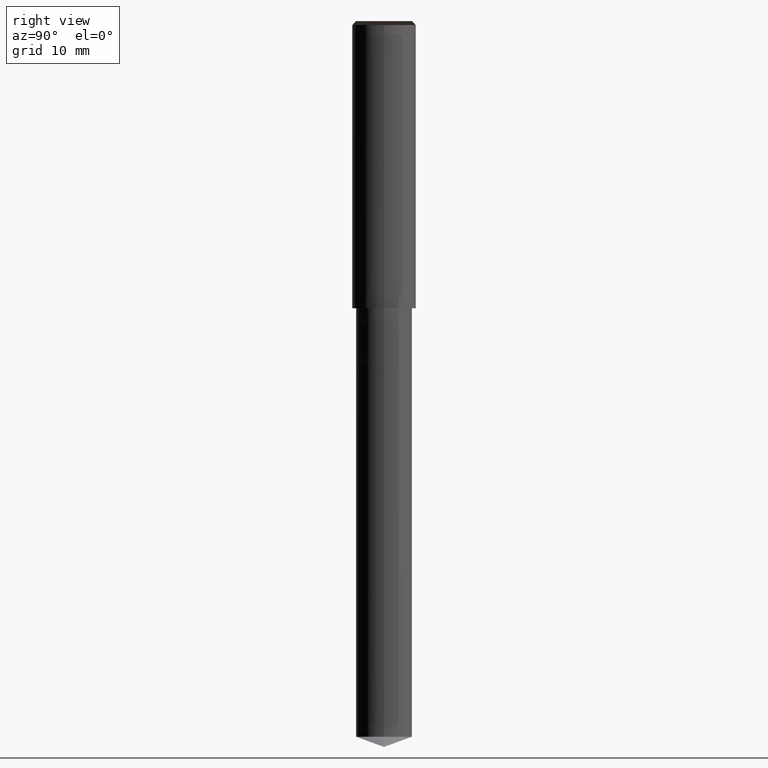
[diagram: clean part render]
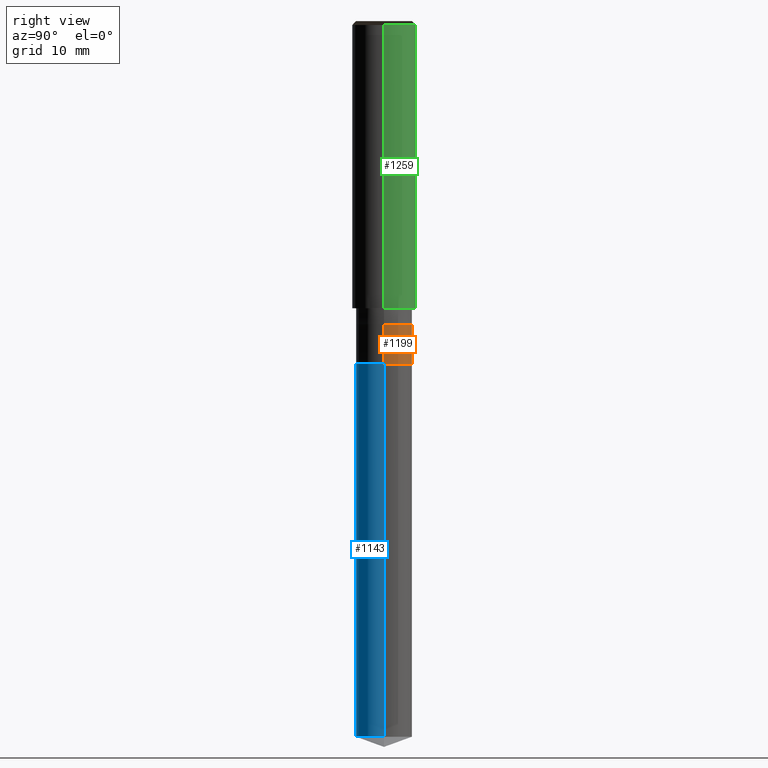
[diagram: same view with three faces highlighted in distinct colors, each labeled with its STEP entity id]
A machine part, right view with three faces highlighted in distinct colors.
Their STEP definitions:

[orange] entity #1199 — the highlighted face is a freeform B-spline surface patch.
#998=CARTESIAN_POINT('',(3.5,0.0,-7.0));
#999=CARTESIAN_POINT('',(3.5,3.5,-7.0));
#1000=CARTESIAN_POINT('',(0.0,3.5,-7.0));
#1001=CARTESIAN_POINT('',(-3.5,3.5,-7.0));
#1002=CARTESIAN_POINT('',(-3.5,0.0,-7.0));
#1010=CARTESIAN_POINT('',(3.5,0.0,-2.0));
#1011=CARTESIAN_POINT('',(3.5,3.5,-2.0));
#1012=CARTESIAN_POINT('',(0.0,3.5,-2.0));
#1013=CARTESIAN_POINT('',(-3.5,3.5,-2.0));
#1014=CARTESIAN_POINT('',(-3.5,0.0,-2.0));
#1180=(
BOUNDED_SURFACE()
B_SPLINE_SURFACE(1,2,(
(#998,#999,#1000,#1001,#1002),
(#1010,#1011,#1012,#1013,#1014)
), .UNSPECIFIED.,.F.,.F.,.F.)
B_SPLINE_SURFACE_WITH_KNOTS((2,2),(3,2,3),(
0.0,1.0),(
0.0,0.5,1.0), .UNSPECIFIED.)
GEOMETRIC_REPRESENTATION_ITEM()
RATIONAL_B_SPLINE_SURFACE(((1.0,0.707106781187,1.0,0.707106781187,1.0),
(1.0,0.707106781187,1.0,0.707106781187,1.0)
))
REPRESENTATION_ITEM('')
SURFACE()
);
#1181=(
BOUNDED_CURVE()
B_SPLINE_CURVE(2,(#1002,#1001,#1000,#999,#998),.UNSPECIFIED.,.F.,.F.)
B_SPLINE_CURVE_WITH_KNOTS((3,2,3),
(0.0,0.5,1.0),.UNSPECIFIED.)
CURVE()
GEOMETRIC_REPRESENTATION_ITEM()
RATIONAL_B_SPLINE_CURVE((1.0,0.707106781187,1.0,0.707106781187,1.0))
REPRESENTATION_ITEM('')
);
#1182=(
BOUNDED_CURVE()
B_SPLINE_CURVE(1,(#998,#1010),.UNSPECIFIED.,.F.,.F.)
B_SPLINE_CURVE_WITH_KNOTS((2,2),
(0.0,1.0),.UNSPECIFIED.)
CURVE()
GEOMETRIC_REPRESENTATION_ITEM()
RATIONAL_B_SPLINE_CURVE((1.0,1.0))
REPRESENTATION_ITEM('')
);
#1183=(
BOUNDED_CURVE()
B_SPLINE_CURVE(2,(#1010,#1011,#1012,#1013,#1014),.UNSPECIFIED.,.F.,.F.)
B_SPLINE_CURVE_WITH_KNOTS((3,2,3),
(0.0,0.5,1.0),.UNSPECIFIED.)
CURVE()
GEOMETRIC_REPRESENTATION_ITEM()
RATIONAL_B_SPLINE_CURVE((1.0,0.707106781187,1.0,0.707106781187,1.0))
REPRESENTATION_ITEM('')
);
#1184=(
BOUNDED_CURVE()
B_SPLINE_CURVE(1,(#1014,#1002),.UNSPECIFIED.,.F.,.F.)
B_SPLINE_CURVE_WITH_KNOTS((2,2),
(0.0,1.0),.UNSPECIFIED.)
CURVE()
GEOMETRIC_REPRESENTATION_ITEM()
RATIONAL_B_SPLINE_CURVE((1.0,1.0))
REPRESENTATION_ITEM('')
);
#1185=VERTEX_POINT('',#998);
#1186=VERTEX_POINT('',#1002);
#1187=VERTEX_POINT('',#1010);
#1188=VERTEX_POINT('',#1014);
#1189=EDGE_CURVE('',#1186,#1185,#1181,.T.);
#1190=EDGE_CURVE('',#1185,#1187,#1182,.T.);
#1191=EDGE_CURVE('',#1187,#1188,#1183,.T.);
#1192=EDGE_CURVE('',#1188,#1186,#1184,.T.);
#1193=ORIENTED_EDGE('',*,*,#1189,.T.);
#1194=ORIENTED_EDGE('',*,*,#1190,.T.);
#1195=ORIENTED_EDGE('',*,*,#1191,.T.);
#1196=ORIENTED_EDGE('',*,*,#1192,.T.);
#1197=EDGE_LOOP('',(#1193,#1194,#1195,#1196));
#1198=FACE_OUTER_BOUND('',#1197,.T.);
#1199=ADVANCED_FACE('',(#1198),#1180,.T.);

[blue] entity #1143 — the highlighted face is a freeform B-spline surface patch.
#993=CARTESIAN_POINT('',(3.5,0.0,-53.726104180068));
#997=CARTESIAN_POINT('',(-3.5,0.0,-53.726104180068));
#998=CARTESIAN_POINT('',(3.5,0.0,-7.0));
#1002=CARTESIAN_POINT('',(-3.5,0.0,-7.0));
#1004=CARTESIAN_POINT('',(-3.5,-3.5,-53.726104180068));
#1005=CARTESIAN_POINT('',(0.0,-3.5,-53.726104180068));
#1006=CARTESIAN_POINT('',(3.5,-3.5,-53.726104180068));
#1007=CARTESIAN_POINT('',(-3.5,-3.5,-7.0));
#1008=CARTESIAN_POINT('',(0.0,-3.5,-7.0));
#1009=CARTESIAN_POINT('',(3.5,-3.5,-7.0));
#1124=(
BOUNDED_SURFACE()
B_SPLINE_SURFACE(1,2,(
(#997,#1004,#1005,#1006,#993),
(#1002,#1007,#1008,#1009,#998)
), .UNSPECIFIED.,.F.,.F.,.F.)
B_SPLINE_SURFACE_WITH_KNOTS((2,2),(3,2,3),(
0.0,1.0),(
0.0,0.5,1.0), .UNSPECIFIED.)
GEOMETRIC_REPRESENTATION_ITEM()
RATIONAL_B_SPLINE_SURFACE(((1.0,0.707106781187,1.0,0.707106781187,1.0),
(1.0,0.707106781187,1.0,0.707106781187,1.0)
))
REPRESENTATION_ITEM('')
SURFACE()
);
#1125=(
BOUNDED_CURVE()
B_SPLINE_CURVE(2,(#993,#1006,#1005,#1004,#997),.UNSPECIFIED.,.F.,.F.)
B_SPLINE_CURVE_WITH_KNOTS((3,2,3),
(0.0,0.5,1.0),.UNSPECIFIED.)
CURVE()
GEOMETRIC_REPRESENTATION_ITEM()
RATIONAL_B_SPLINE_CURVE((1.0,0.707106781187,1.0,0.707106781187,1.0))
REPRESENTATION_ITEM('')
);
#1126=(
BOUNDED_CURVE()
B_SPLINE_CURVE(1,(#997,#1002),.UNSPECIFIED.,.F.,.F.)
B_SPLINE_CURVE_WITH_KNOTS((2,2),
(0.0,1.0),.UNSPECIFIED.)
CURVE()
GEOMETRIC_REPRESENTATION_ITEM()
RATIONAL_B_SPLINE_CURVE((1.0,1.0))
REPRESENTATION_ITEM('')
);
#1127=(
BOUNDED_CURVE()
B_SPLINE_CURVE(2,(#1002,#1007,#1008,#1009,#998),.UNSPECIFIED.,.F.,.F.)
B_SPLINE_CURVE_WITH_KNOTS((3,2,3),
(0.0,0.5,1.0),.UNSPECIFIED.)
CURVE()
GEOMETRIC_REPRESENTATION_ITEM()
RATIONAL_B_SPLINE_CURVE((1.0,0.707106781187,1.0,0.707106781187,1.0))
REPRESENTATION_ITEM('')
);
#1128=(
BOUNDED_CURVE()
B_SPLINE_CURVE(1,(#998,#993),.UNSPECIFIED.,.F.,.F.)
B_SPLINE_CURVE_WITH_KNOTS((2,2),
(0.0,1.0),.UNSPECIFIED.)
CURVE()
GEOMETRIC_REPRESENTATION_ITEM()
RATIONAL_B_SPLINE_CURVE((1.0,1.0))
REPRESENTATION_ITEM('')
);
#1129=VERTEX_POINT('',#993);
#1130=VERTEX_POINT('',#997);
#1131=VERTEX_POINT('',#998);
#1132=VERTEX_POINT('',#1002);
#1133=EDGE_CURVE('',#1129,#1130,#1125,.T.);
#1134=EDGE_CURVE('',#1130,#1132,#1126,.T.);
#1135=EDGE_CURVE('',#1132,#1131,#1127,.T.);
#1136=EDGE_CURVE('',#1131,#1129,#1128,.T.);
#1137=ORIENTED_EDGE('',*,*,#1133,.T.);
#1138=ORIENTED_EDGE('',*,*,#1134,.T.);
#1139=ORIENTED_EDGE('',*,*,#1135,.T.);
#1140=ORIENTED_EDGE('',*,*,#1136,.T.);
#1141=EDGE_LOOP('',(#1137,#1138,#1139,#1140));
#1142=FACE_OUTER_BOUND('',#1141,.T.);
#1143=ADVANCED_FACE('',(#1142),#1124,.T.);

[green] entity #1259 — the highlighted face is a freeform B-spline surface patch.
#1020=CARTESIAN_POINT('',(4.0,0.0,0.0));
#1021=CARTESIAN_POINT('',(4.0,4.0,0.0));
#1022=CARTESIAN_POINT('',(0.0,4.0,0.0));
#1023=CARTESIAN_POINT('',(-4.0,4.0,0.0));
#1024=CARTESIAN_POINT('',(-4.0,0.0,0.0));
#1025=CARTESIAN_POINT('',(4.0,0.0,35.5));
#1026=CARTESIAN_POINT('',(4.0,4.0,35.5));
#1027=CARTESIAN_POINT('',(0.0,4.0,35.5));
#1028=CARTESIAN_POINT('',(-4.0,4.0,35.5));
#1029=CARTESIAN_POINT('',(-4.0,0.0,35.5));
#1240=(
BOUNDED_SURFACE()
B_SPLINE_SURFACE(1,2,(
(#1020,#1021,#1022,#1023,#1024),
(#1025,#1026,#1027,#1028,#1029)
), .UNSPECIFIED.,.F.,.F.,.F.)
B_SPLINE_SURFACE_WITH_KNOTS((2,2),(3,2,3),(
0.0,1.0),(
0.0,0.5,1.0), .UNSPECIFIED.)
GEOMETRIC_REPRESENTATION_ITEM()
RATIONAL_B_SPLINE_SURFACE(((1.0,0.707106781187,1.0,0.707106781187,1.0),
(1.0,0.707106781187,1.0,0.707106781187,1.0)
))
REPRESENTATION_ITEM('')
SURFACE()
);
#1241=(
BOUNDED_CURVE()
B_SPLINE_CURVE(2,(#1024,#1023,#1022,#1021,#1020),.UNSPECIFIED.,.F.,.F.)
B_SPLINE_CURVE_WITH_KNOTS((3,2,3),
(0.0,0.5,1.0),.UNSPECIFIED.)
CURVE()
GEOMETRIC_REPRESENTATION_ITEM()
RATIONAL_B_SPLINE_CURVE((1.0,0.707106781187,1.0,0.707106781187,1.0))
REPRESENTATION_ITEM('')
);
#1242=(
BOUNDED_CURVE()
B_SPLINE_CURVE(1,(#1020,#1025),.UNSPECIFIED.,.F.,.F.)
B_SPLINE_CURVE_WITH_KNOTS((2,2),
(0.0,1.0),.UNSPECIFIED.)
CURVE()
GEOMETRIC_REPRESENTATION_ITEM()
RATIONAL_B_SPLINE_CURVE((1.0,1.0))
REPRESENTATION_ITEM('')
);
#1243=(
BOUNDED_CURVE()
B_SPLINE_CURVE(2,(#1025,#1026,#1027,#1028,#1029),.UNSPECIFIED.,.F.,.F.)
B_SPLINE_CURVE_WITH_KNOTS((3,2,3),
(0.0,0.5,1.0),.UNSPECIFIED.)
CURVE()
GEOMETRIC_REPRESENTATION_ITEM()
RATIONAL_B_SPLINE_CURVE((1.0,0.707106781187,1.0,0.707106781187,1.0))
REPRESENTATION_ITEM('')
);
#1244=(
BOUNDED_CURVE()
B_SPLINE_CURVE(1,(#1029,#1024),.UNSPECIFIED.,.F.,.F.)
B_SPLINE_CURVE_WITH_KNOTS((2,2),
(0.0,1.0),.UNSPECIFIED.)
CURVE()
GEOMETRIC_REPRESENTATION_ITEM()
RATIONAL_B_SPLINE_CURVE((1.0,1.0))
REPRESENTATION_ITEM('')
);
#1245=VERTEX_POINT('',#1020);
#1246=VERTEX_POINT('',#1024);
#1247=VERTEX_POINT('',#1025);
#1248=VERTEX_POINT('',#1029);
#1249=EDGE_CURVE('',#1246,#1245,#1241,.T.);
#1250=EDGE_CURVE('',#1245,#1247,#1242,.T.);
#1251=EDGE_CURVE('',#1247,#1248,#1243,.T.);
#1252=EDGE_CURVE('',#1248,#1246,#1244,.T.);
#1253=ORIENTED_EDGE('',*,*,#1249,.T.);
#1254=ORIENTED_EDGE('',*,*,#1250,.T.);
#1255=ORIENTED_EDGE('',*,*,#1251,.T.);
#1256=ORIENTED_EDGE('',*,*,#1252,.T.);
#1257=EDGE_LOOP('',(#1253,#1254,#1255,#1256));
#1258=FACE_OUTER_BOUND('',#1257,.T.);
#1259=ADVANCED_FACE('',(#1258),#1240,.T.);